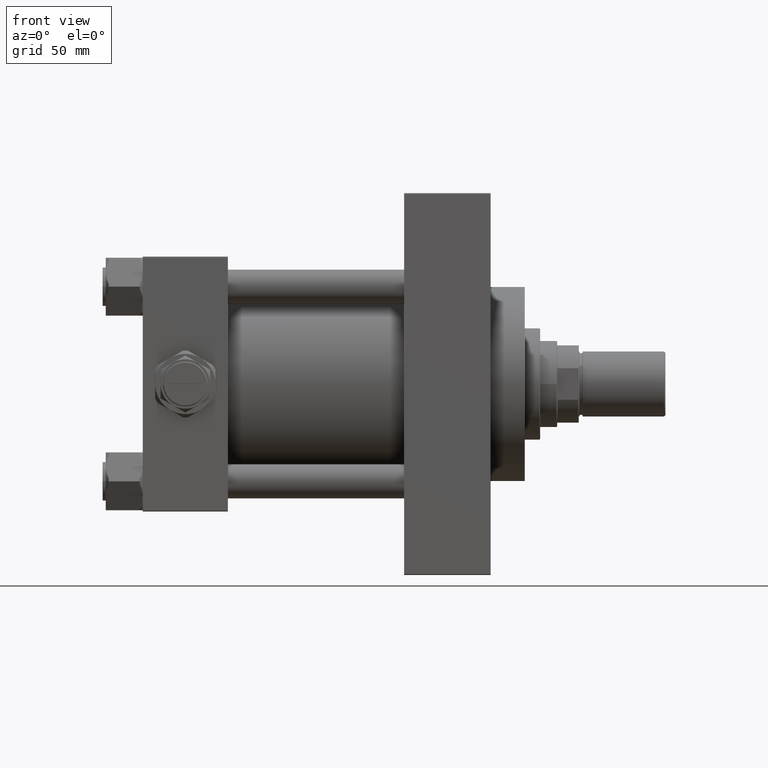
[diagram: clean part render]
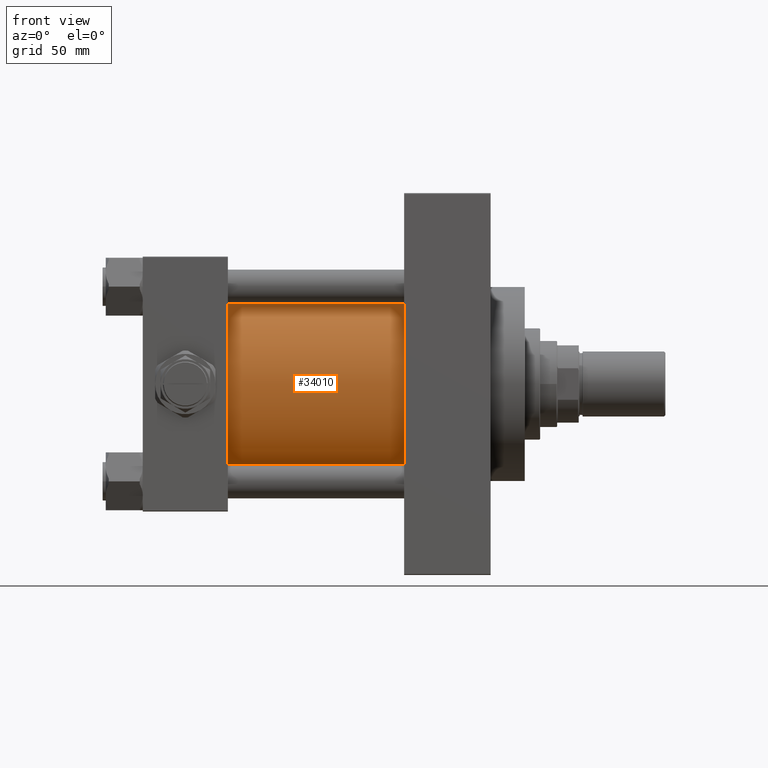
[diagram: same view with one face highlighted and labeled with its STEP entity id]
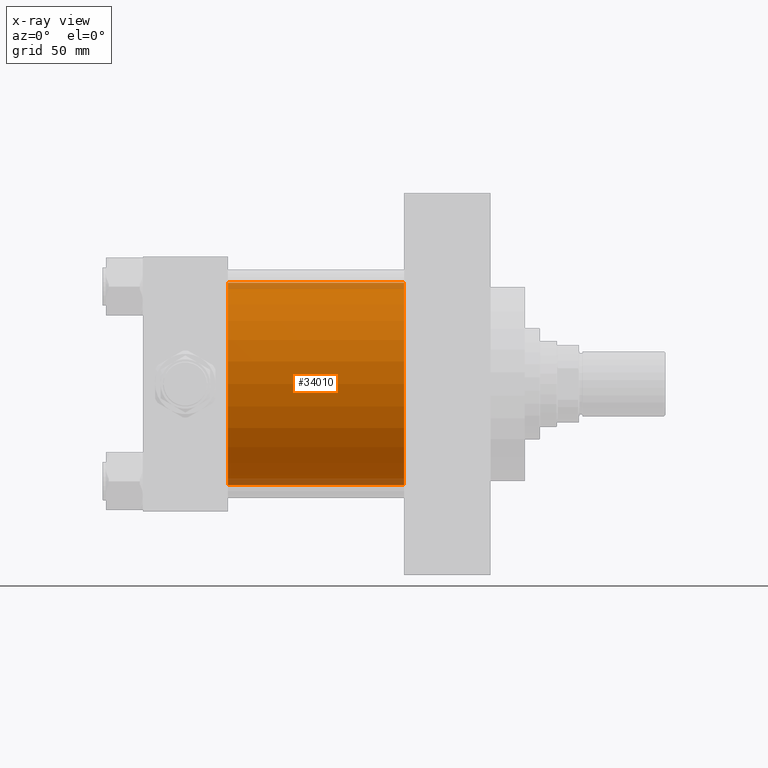
[diagram: x-ray of the same camera — body ghosted, the highlighted face saturated]
A machine part, front view. The second image highlights one B-rep face of the part: STEP entity #34010.
The next image is the same camera in x-ray: the body ghosted, the highlighted face saturated — about 6% of this face is hidden behind the body in this view.
In plain terms, the highlighted cylindrical surface (partial cylindrical patch) has radius 65.5 mm, axis along (-1, -0, -0).
Its self-contained STEP definition (entity closure, byte-faithful):
#1317 = VECTOR ( 'NONE', #34405, 1000.000000000000000 ) ;
#5147 = FACE_OUTER_BOUND ( 'NONE', #14406, .T. ) ;
#5849 = CARTESIAN_POINT ( 'NONE',  ( 169.0000000000000000, 5.419351320449953395E-15, -65.50000000000001421 ) ) ;
#5899 = DIRECTION ( 'NONE',  ( -1.000000000000000000, -0.000000000000000000, -0.000000000000000000 ) ) ;
#7270 = ORIENTED_EDGE ( 'NONE', *, *, #32366, .T. ) ;
#8617 = VERTEX_POINT ( 'NONE', #37653 ) ;
#8794 = CARTESIAN_POINT ( 'NONE',  ( 169.0000000000000000, -2.602085213965210642E-15, 65.50000000000001421 ) ) ;
#12119 = ORIENTED_EDGE ( 'NONE', *, *, #42850, .F. ) ;
#12597 = VERTEX_POINT ( 'NONE', #31791 ) ;
#12963 = CARTESIAN_POINT ( 'NONE',  ( 169.0000000000000000, -2.602085213965210642E-15, 0.000000000000000000 ) ) ;
#13961 = CARTESIAN_POINT ( 'NONE',  ( 169.0000000000000000, -2.602085213965210642E-15, 0.000000000000000000 ) ) ;
#14406 = EDGE_LOOP ( 'NONE', ( #25839, #12119, #7270, #39605 ) ) ;
#16548 = AXIS2_PLACEMENT_3D ( 'NONE', #12963, #5899, #28397 ) ;
#17659 = EDGE_CURVE ( 'NONE', #12597, #8617, #32800, .T. ) ;
#18542 = CARTESIAN_POINT ( 'NONE',  ( 169.0000000000000000, 5.419351320449953395E-15, -65.50000000000001421 ) ) ;
#19602 = DIRECTION ( 'NONE',  ( 1.000000000000000000, -0.000000000000000000, -0.000000000000000000 ) ) ;
#19696 = CARTESIAN_POINT ( 'NONE',  ( 169.0000000000000000, -2.602085213965210642E-15, 65.50000000000001421 ) ) ;
#21048 = VERTEX_POINT ( 'NONE', #18542 ) ;
#21255 = DIRECTION ( 'NONE',  ( -1.000000000000000000, -0.000000000000000000, -0.000000000000000000 ) ) ;
#24749 = AXIS2_PLACEMENT_3D ( 'NONE', #26706, #19602, #42352 ) ;
#25042 = LINE ( 'NONE', #5849, #41945 ) ;
#25839 = ORIENTED_EDGE ( 'NONE', *, *, #44207, .F. ) ;
#26706 = CARTESIAN_POINT ( 'NONE',  ( 54.99999999999999289, -2.602085213965210642E-15, 0.000000000000000000 ) ) ;
#28397 = DIRECTION ( 'NONE',  ( 0.000000000000000000, 0.000000000000000000, 1.000000000000000000 ) ) ;
#29389 = DIRECTION ( 'NONE',  ( 1.000000000000000000, 0.000000000000000000, 0.000000000000000000 ) ) ;
#31791 = CARTESIAN_POINT ( 'NONE',  ( 54.99999999999999289, -2.602085213965210642E-15, 65.50000000000001421 ) ) ;
#32224 = AXIS2_PLACEMENT_3D ( 'NONE', #13961, #29389, #44790 ) ;
#32366 = EDGE_CURVE ( 'NONE', #44436, #12597, #41978, .T. ) ;
#32800 = CIRCLE ( 'NONE', #24749, 65.50000000000001421 ) ;
#34010 = ADVANCED_FACE ( 'NONE', ( #5147 ), #40503, .T. ) ;
#34405 = DIRECTION ( 'NONE',  ( -1.000000000000000000, -0.000000000000000000, -0.000000000000000000 ) ) ;
#37653 = CARTESIAN_POINT ( 'NONE',  ( 54.99999999999999289, 5.419351320449953395E-15, -65.50000000000001421 ) ) ;
#39497 = CIRCLE ( 'NONE', #32224, 65.50000000000001421 ) ;
#39605 = ORIENTED_EDGE ( 'NONE', *, *, #17659, .T. ) ;
#40503 = CYLINDRICAL_SURFACE ( 'NONE', #16548, 65.50000000000001421 ) ;
#41945 = VECTOR ( 'NONE', #21255, 1000.000000000000000 ) ;
#41978 = LINE ( 'NONE', #8794, #1317 ) ;
#42352 = DIRECTION ( 'NONE',  ( 0.000000000000000000, 0.000000000000000000, 1.000000000000000000 ) ) ;
#42850 = EDGE_CURVE ( 'NONE', #44436, #21048, #39497, .T. ) ;
#44207 = EDGE_CURVE ( 'NONE', #21048, #8617, #25042, .T. ) ;
#44436 = VERTEX_POINT ( 'NONE', #19696 ) ;
#44790 = DIRECTION ( 'NONE',  ( 0.000000000000000000, 0.000000000000000000, -1.000000000000000000 ) ) ;